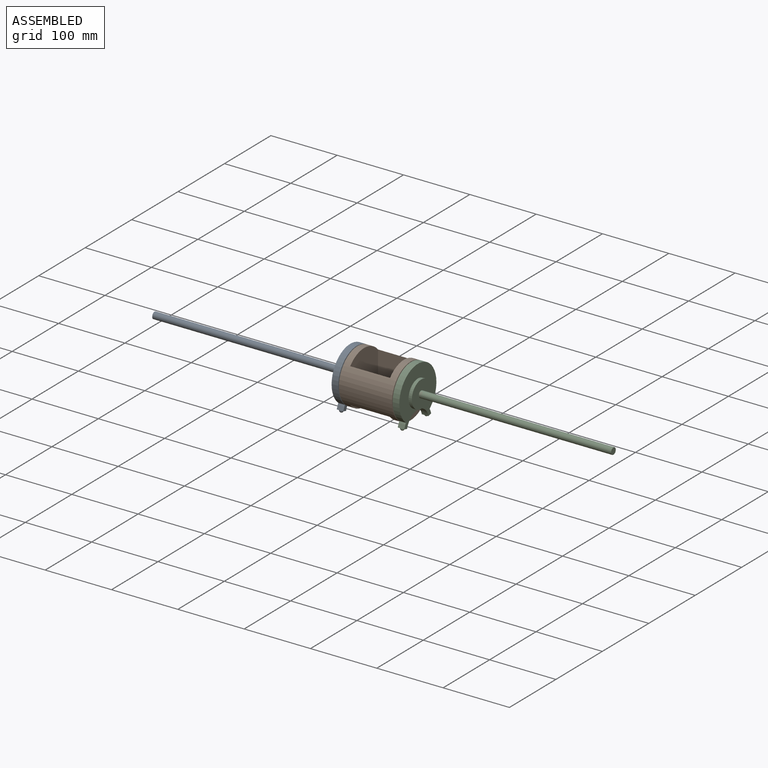
[diagram: assembled view]
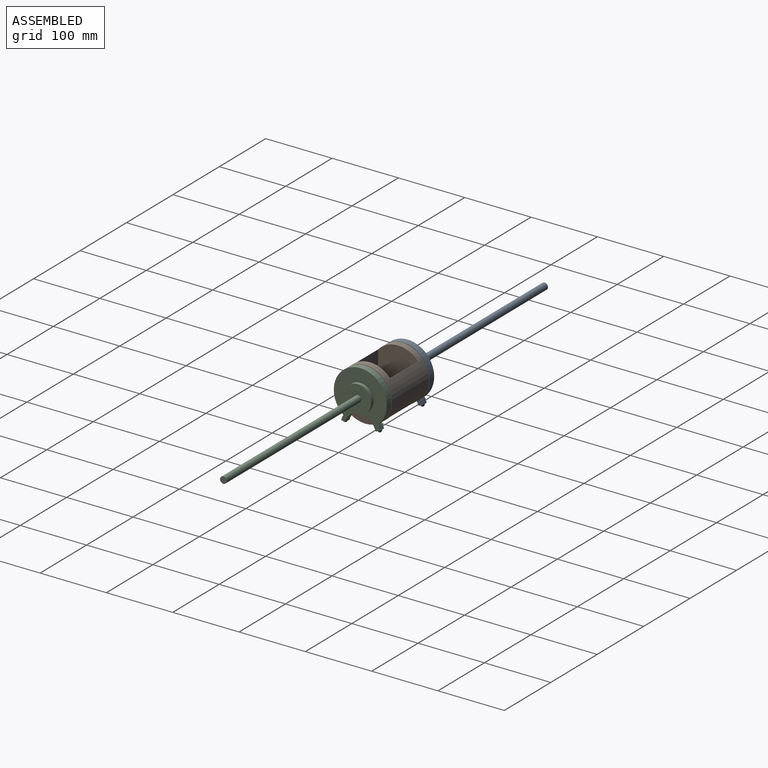
[diagram: assembled view, second angle]
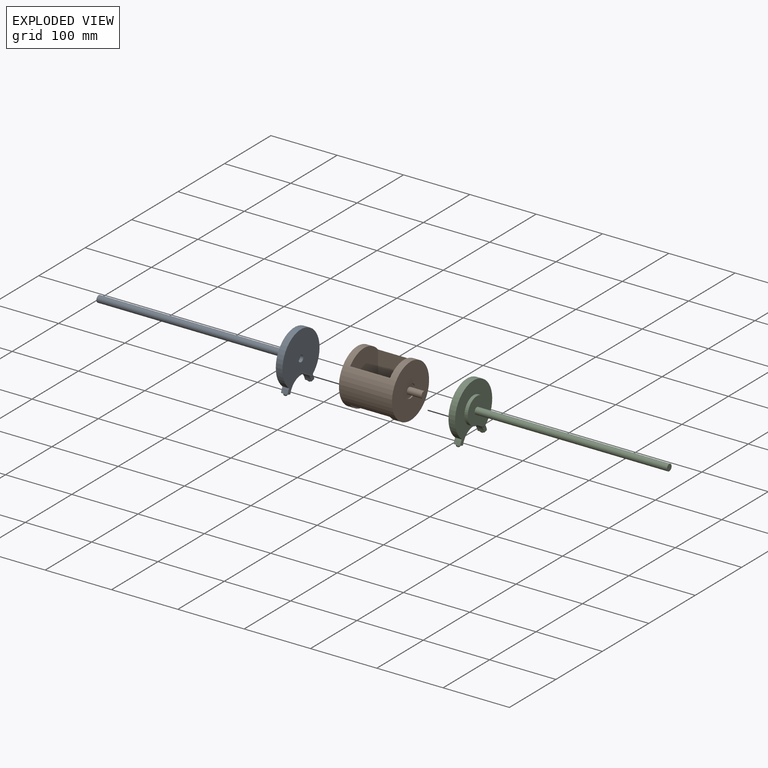
[diagram: exploded view]
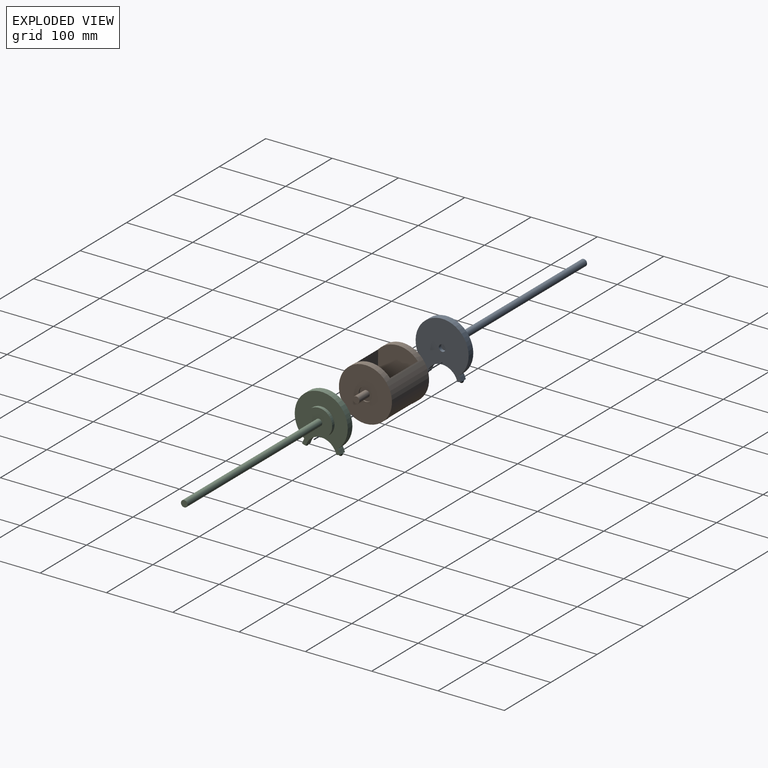
[diagram: exploded view, second angle]
ASSEMBLY  parts=3 mates=2
PART A: 18 faces, bbox 80x305x82.2 mm
  f0: cylinder r=5mm len=10mm, axis (0,1,0), area 157.1mm2, adj f10,f15
  f1: plane 5.77x5mm, normal (-0.26,0,-0.97), area 15.9mm2, adj f3,f7,f9,f12
  f2: plane 5.77x5mm, normal (0.26,0,-0.97), area 15.9mm2, adj f3,f5,f10,f11
  f3: cylinder r=23.81mm len=46.03mm, axis (0,1,0), area 624.6mm2, adj f1,f2,f4,f8,f9,f10
  f4: plane 5.77x5mm, normal (0.26,0,-0.97), area 15.9mm2, adj f3,f5,f9,f11
  f5: cylinder r=29.78mm len=10mm, axis (0,1,0), area 83.7mm2, adj f2,f4,f6,f9,f10
  f6: cylinder r=40mm len=80mm, axis (0,1,0), area 1959.3mm2, adj f5,f7,f9,f10
  f7: cylinder r=29.78mm len=10mm, axis (0,1,0), area 83.7mm2, adj f1,f6,f8,f9,f10
  f8: plane 5.77x5mm, normal (-0.26,0,-0.97), area 15.9mm2, adj f3,f7,f10,f12
  f9: plane 80x80mm, normal (0,-1,0), area 3345.2mm2, adj f1,f3,f4,f5,f6,f7,f14
  f10: plane 80x80mm, normal (0,1,0), area 4523.2mm2, adj f0,f2,f3,f5,f6,f7,f8
  f11: sphere r=2.98mm, area 56mm2, adj f2,f4
  f12: sphere r=2.98mm, area 56mm2, adj f1,f8
  f13: plane 40x40mm, normal (0,-1,0), area 1178.1mm2, adj f14,f16
  f14: cylinder r=20mm len=40mm, axis (0,1,0), area 628.3mm2, adj f9,f13
  f15: plane 10x10mm, normal (0,1,0), area 78.5mm2, adj f0
  f16: cylinder r=5mm len=290mm, axis (0,1,0), area 9110.6mm2, adj f13,f17
  f17: plane 10x10mm, normal (0,-1,0), area 78.5mm2, adj f16
PART B: 15 faces, bbox 120x80x80 mm
  f0: cylinder r=10mm len=20mm, axis (1,0,0), area 125.7mm2, adj f2,f4
  f1: cylinder r=40mm len=80mm, axis (1,0,0), area 11964.8mm2, adj f2,f3,f7,f8,f9,f11
  f2: plane 80x80mm, normal (-1,0,0), area 4712.4mm2, adj f0,f1
  f3: plane 80x60mm, normal (1,0,0), area 4301.2mm2, adj f1,f7,f8
  f4: plane 20x20mm, normal (-1,0,0), area 235.6mm2, adj f0,f6
  f5: plane 10x10mm, normal (-1,0,0), area 78.5mm2, adj f6
  f6: cylinder r=5mm len=22mm, axis (1,0,0), area 691.2mm2, adj f4,f5
  f7: plane 60x52.92mm, normal (0,-1,0), area 3174.9mm2, adj f1,f3,f9
  f8: plane 60x52.92mm, normal (0,1,0), area 3174.9mm2, adj f1,f3,f9
  f9: plane 80x60mm, normal (-1,0,0), area 4301.2mm2, adj f1,f7,f8
  f10: cylinder r=10mm len=20mm, axis (-1,0,0), area 125.7mm2, adj f11,f12
  f11: plane 80x80mm, normal (1,0,0), area 4712.4mm2, adj f1,f10
  f12: plane 20x20mm, normal (1,0,0), area 235.6mm2, adj f10,f14
  f13: plane 10x10mm, normal (1,0,0), area 78.5mm2, adj f14
  f14: cylinder r=5mm len=22mm, axis (-1,0,0), area 691.2mm2, adj f12,f13
PART C: same geometry as A
PLACE A rot(axis=(0,0,-1),90deg) t=(548.5,-1005.47,621.65)mm
PLACE B rot(axis=(-1,0,0),0.1deg) t=(564.5,-1005.35,667.75)mm
PLACE C rot(axis=(0,0,1),90deg) t=(640.5,-1005.47,621.65)mm
MATE fastened A.f0 <-> B.f6  axis (1,0,0) through (553.5,-1005.35,667.75)mm
MATE fastened C.f0 <-> B.f6  axis (-1,0,0) through (635.5,-1005.35,667.75)mm
